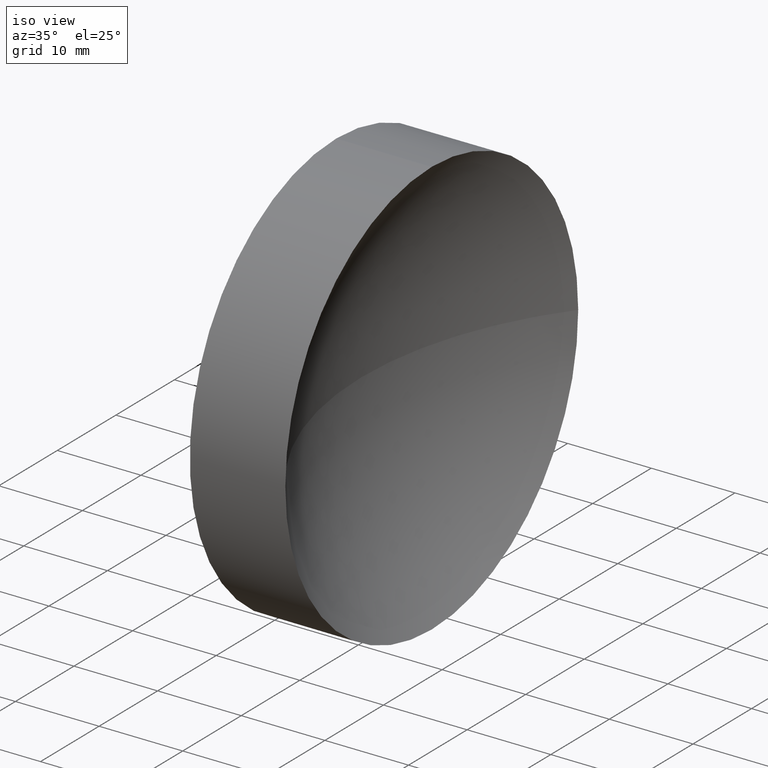
[diagram: clean part render]
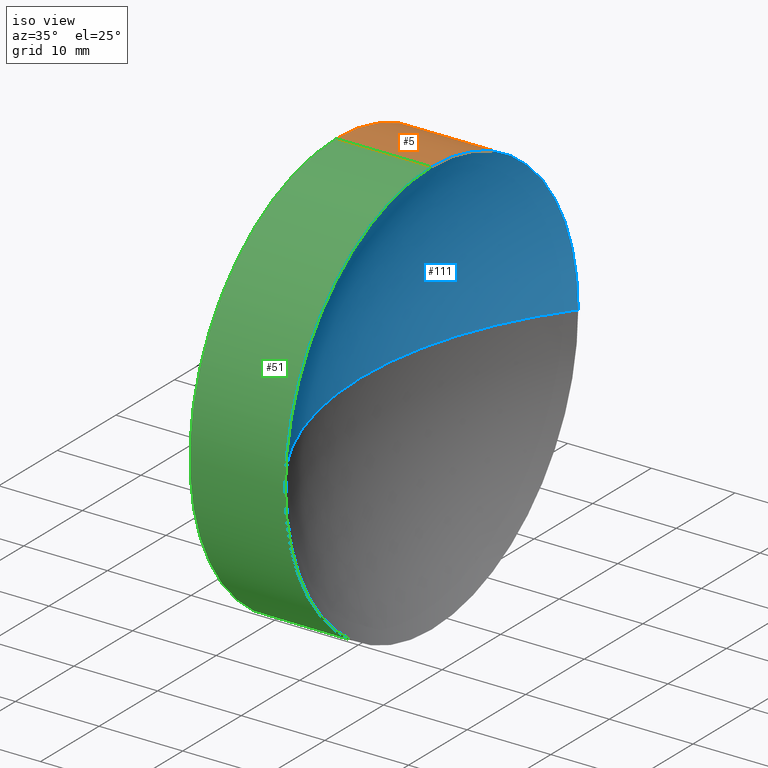
[diagram: same view with three faces highlighted in distinct colors, each labeled with its STEP entity id]
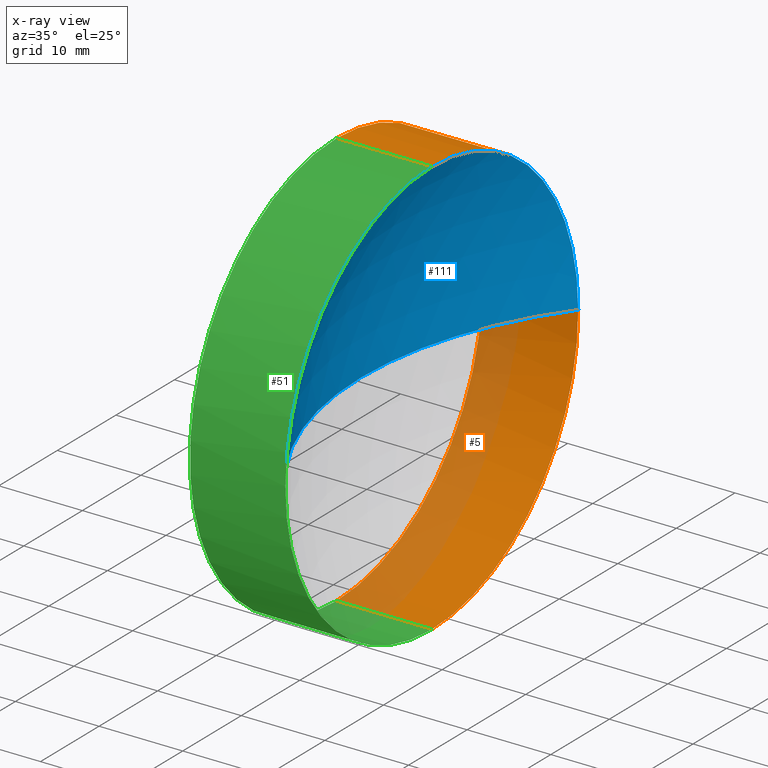
[diagram: x-ray of the same camera — body ghosted, the three highlighted faces saturated]
A machine part, iso view with three faces highlighted in distinct colors.
The next image is the same camera in x-ray (body ghosted, the three faces saturated) — at least one of them is partly hidden behind the body in this view.
Their STEP definitions:

[orange] entity #5 — the highlighted cylindrical surface (partial cylindrical patch) has radius 25 mm, axis along (-1, -0, -0).
#4 = ORIENTED_EDGE ( 'NONE', *, *, #60, .F. ) ;
#5 = ADVANCED_FACE ( 'NONE', ( #87 ), #7, .T. ) ;
#7 = CYLINDRICAL_SURFACE ( 'NONE', #61, 24.99999999999999300 ) ;
#8 = VERTEX_POINT ( 'NONE', #22 ) ;
#17 = EDGE_CURVE ( 'NONE', #164, #158, #43, .T. ) ;
#18 = ORIENTED_EDGE ( 'NONE', *, *, #52, .T. ) ;
#22 = CARTESIAN_POINT ( 'NONE',  ( 125.1655873448789900, 65.15563045701519200, 24.99999999999999300 ) ) ;
#25 = DIRECTION ( 'NONE',  ( -1.000000000000000000, -0.0000000000000000000, -0.0000000000000000000 ) ) ;
#34 = VECTOR ( 'NONE', #165, 1000.000000000000000 ) ;
#35 = CARTESIAN_POINT ( 'NONE',  ( 125.1655873448789900, 65.15563045701519200, 0.0000000000000000000 ) ) ;
#36 = DIRECTION ( 'NONE',  ( 0.0000000000000000000, 0.0000000000000000000, 1.000000000000000000 ) ) ;
#37 = VECTOR ( 'NONE', #151, 1000.000000000000000 ) ;
#43 = LINE ( 'NONE', #46, #37 ) ;
#46 = CARTESIAN_POINT ( 'NONE',  ( 105.6218371238301200, 65.15563045701519200, -24.99999999999999300 ) ) ;
#47 = CARTESIAN_POINT ( 'NONE',  ( 113.7394371346435000, 65.15563045701519200, 0.0000000000000000000 ) ) ;
#50 = CARTESIAN_POINT ( 'NONE',  ( 125.1655873448789900, 90.15563045701519200, 3.061616997868381500E-015 ) ) ;
#52 = EDGE_CURVE ( 'NONE', #126, #164, #59, .T. ) ;
#57 = EDGE_CURVE ( 'NONE', #92, #158, #67, .T. ) ;
#59 = CIRCLE ( 'NONE', #72, 24.99999999999999300 ) ;
#60 = EDGE_CURVE ( 'NONE', #8, #92, #83, .T. ) ;
#61 = AXIS2_PLACEMENT_3D ( 'NONE', #90, #173, #36 ) ;
#63 = DIRECTION ( 'NONE',  ( 0.0000000000000000000, 0.0000000000000000000, 1.000000000000000000 ) ) ;
#67 = CIRCLE ( 'NONE', #105, 24.99999999999999300 ) ;
#72 = AXIS2_PLACEMENT_3D ( 'NONE', #35, #75, #136 ) ;
#73 = EDGE_LOOP ( 'NONE', ( #18, #116, #149, #4, #161 ) ) ;
#75 = DIRECTION ( 'NONE',  ( -1.000000000000000000, -0.0000000000000000000, -0.0000000000000000000 ) ) ;
#83 = LINE ( 'NONE', #147, #34 ) ;
#87 = FACE_OUTER_BOUND ( 'NONE', #73, .T. ) ;
#88 = AXIS2_PLACEMENT_3D ( 'NONE', #102, #25, #115 ) ;
#90 = CARTESIAN_POINT ( 'NONE',  ( 105.6218371238301200, 65.15563045701519200, 0.0000000000000000000 ) ) ;
#92 = VERTEX_POINT ( 'NONE', #124 ) ;
#102 = CARTESIAN_POINT ( 'NONE',  ( 125.1655873448789900, 65.15563045701519200, 0.0000000000000000000 ) ) ;
#105 = AXIS2_PLACEMENT_3D ( 'NONE', #47, #148, #63 ) ;
#115 = DIRECTION ( 'NONE',  ( 0.0000000000000000000, 0.0000000000000000000, 1.000000000000000000 ) ) ;
#116 = ORIENTED_EDGE ( 'NONE', *, *, #17, .T. ) ;
#124 = CARTESIAN_POINT ( 'NONE',  ( 113.7394371346435000, 65.15563045701519200, 24.99999999999999300 ) ) ;
#126 = VERTEX_POINT ( 'NONE', #50 ) ;
#136 = DIRECTION ( 'NONE',  ( 0.0000000000000000000, 0.0000000000000000000, 1.000000000000000000 ) ) ;
#142 = CARTESIAN_POINT ( 'NONE',  ( 125.1655873448789900, 65.15563045701519200, -24.99999999999999300 ) ) ;
#145 = CIRCLE ( 'NONE', #88, 24.99999999999999300 ) ;
#147 = CARTESIAN_POINT ( 'NONE',  ( 105.6218371238301200, 65.15563045701519200, 24.99999999999999300 ) ) ;
#148 = DIRECTION ( 'NONE',  ( -1.000000000000000000, -0.0000000000000000000, -0.0000000000000000000 ) ) ;
#149 = ORIENTED_EDGE ( 'NONE', *, *, #57, .F. ) ;
#151 = DIRECTION ( 'NONE',  ( -1.000000000000000000, -0.0000000000000000000, -0.0000000000000000000 ) ) ;
#158 = VERTEX_POINT ( 'NONE', #182 ) ;
#160 = EDGE_CURVE ( 'NONE', #8, #126, #145, .T. ) ;
#161 = ORIENTED_EDGE ( 'NONE', *, *, #160, .T. ) ;
#164 = VERTEX_POINT ( 'NONE', #142 ) ;
#165 = DIRECTION ( 'NONE',  ( -1.000000000000000000, -0.0000000000000000000, -0.0000000000000000000 ) ) ;
#173 = DIRECTION ( 'NONE',  ( -1.000000000000000000, -0.0000000000000000000, -0.0000000000000000000 ) ) ;
#182 = CARTESIAN_POINT ( 'NONE',  ( 113.7394371346435000, 65.15563045701519200, -24.99999999999999300 ) ) ;

[blue] entity #111 — the highlighted spherical surface has radius 41.3 mm.
#1 = EDGE_CURVE ( 'NONE', #49, #8, #129, .T. ) ;
#2 = ORIENTED_EDGE ( 'NONE', *, *, #14, .T. ) ;
#3 = ORIENTED_EDGE ( 'NONE', *, *, #160, .F. ) ;
#6 = CARTESIAN_POINT ( 'NONE',  ( 116.7394371346435000, 65.15563045701520700, 0.0000000000000000000 ) ) ;
#8 = VERTEX_POINT ( 'NONE', #22 ) ;
#9 = DIRECTION ( 'NONE',  ( -1.000000000000000000, 0.0000000000000000000, 0.0000000000000000000 ) ) ;
#10 = DIRECTION ( 'NONE',  ( 0.0000000000000000000, 0.0000000000000000000, -1.000000000000000000 ) ) ;
#11 = CARTESIAN_POINT ( 'NONE',  ( 158.0394371346434900, 65.15563045701520700, 0.0000000000000000000 ) ) ;
#12 = DIRECTION ( 'NONE',  ( 0.0000000000000000000, -1.224646799147353200E-016, 1.000000000000000000 ) ) ;
#14 = EDGE_CURVE ( 'NONE', #49, #55, #74, .T. ) ;
#22 = CARTESIAN_POINT ( 'NONE',  ( 125.1655873448789900, 65.15563045701519200, 24.99999999999999300 ) ) ;
#25 = DIRECTION ( 'NONE',  ( -1.000000000000000000, -0.0000000000000000000, -0.0000000000000000000 ) ) ;
#33 = AXIS2_PLACEMENT_3D ( 'NONE', #95, #10, #9 ) ;
#38 = ORIENTED_EDGE ( 'NONE', *, *, #1, .F. ) ;
#45 = ORIENTED_EDGE ( 'NONE', *, *, #162, .F. ) ;
#49 = VERTEX_POINT ( 'NONE', #166 ) ;
#50 = CARTESIAN_POINT ( 'NONE',  ( 125.1655873448789900, 90.15563045701519200, 3.061616997868381500E-015 ) ) ;
#55 = VERTEX_POINT ( 'NONE', #6 ) ;
#64 = DIRECTION ( 'NONE',  ( 0.0000000000000000000, 0.0000000000000000000, 1.000000000000000000 ) ) ;
#71 = DIRECTION ( 'NONE',  ( 0.0000000000000000000, 0.0000000000000000000, 1.000000000000000000 ) ) ;
#74 = CIRCLE ( 'NONE', #33, 41.30000000000000400 ) ;
#88 = AXIS2_PLACEMENT_3D ( 'NONE', #102, #25, #115 ) ;
#93 = DIRECTION ( 'NONE',  ( -1.000000000000000000, -0.0000000000000000000, -0.0000000000000000000 ) ) ;
#95 = CARTESIAN_POINT ( 'NONE',  ( 158.0394371346434900, 65.15563045701520700, 0.0000000000000000000 ) ) ;
#99 = EDGE_LOOP ( 'NONE', ( #45, #3, #38, #2 ) ) ;
#101 = AXIS2_PLACEMENT_3D ( 'NONE', #123, #93, #64 ) ;
#102 = CARTESIAN_POINT ( 'NONE',  ( 125.1655873448789900, 65.15563045701519200, 0.0000000000000000000 ) ) ;
#104 = SPHERICAL_SURFACE ( 'NONE', #127, 41.30000000000000400 ) ;
#111 = ADVANCED_FACE ( 'NONE', ( #131 ), #104, .F. ) ;
#115 = DIRECTION ( 'NONE',  ( 0.0000000000000000000, 0.0000000000000000000, 1.000000000000000000 ) ) ;
#123 = CARTESIAN_POINT ( 'NONE',  ( 125.1655873448789900, 65.15563045701519200, 0.0000000000000000000 ) ) ;
#126 = VERTEX_POINT ( 'NONE', #50 ) ;
#127 = AXIS2_PLACEMENT_3D ( 'NONE', #11, #71, #178 ) ;
#129 = CIRCLE ( 'NONE', #101, 24.99999999999999300 ) ;
#131 = FACE_OUTER_BOUND ( 'NONE', #99, .T. ) ;
#144 = AXIS2_PLACEMENT_3D ( 'NONE', #154, #12, #167 ) ;
#145 = CIRCLE ( 'NONE', #88, 24.99999999999999300 ) ;
#154 = CARTESIAN_POINT ( 'NONE',  ( 158.0394371346434900, 65.15563045701520700, 0.0000000000000000000 ) ) ;
#160 = EDGE_CURVE ( 'NONE', #8, #126, #145, .T. ) ;
#162 = EDGE_CURVE ( 'NONE', #126, #55, #170, .T. ) ;
#166 = CARTESIAN_POINT ( 'NONE',  ( 125.1655873448789900, 40.15563045701520700, 0.0000000000000000000 ) ) ;
#167 = DIRECTION ( 'NONE',  ( 0.0000000000000000000, -1.000000000000000000, -1.224646799147353200E-016 ) ) ;
#170 = CIRCLE ( 'NONE', #144, 41.30000000000000400 ) ;
#178 = DIRECTION ( 'NONE',  ( 0.0000000000000000000, -1.000000000000000000, 0.0000000000000000000 ) ) ;

[green] entity #51 — the highlighted cylindrical surface (partial cylindrical patch) has radius 25 mm, axis along (-1, -0, -0).
#1 = EDGE_CURVE ( 'NONE', #49, #8, #129, .T. ) ;
#8 = VERTEX_POINT ( 'NONE', #22 ) ;
#17 = EDGE_CURVE ( 'NONE', #164, #158, #43, .T. ) ;
#19 = EDGE_CURVE ( 'NONE', #158, #92, #135, .T. ) ;
#20 = CIRCLE ( 'NONE', #21, 24.99999999999999300 ) ;
#21 = AXIS2_PLACEMENT_3D ( 'NONE', #41, #125, #180 ) ;
#22 = CARTESIAN_POINT ( 'NONE',  ( 125.1655873448789900, 65.15563045701519200, 24.99999999999999300 ) ) ;
#34 = VECTOR ( 'NONE', #165, 1000.000000000000000 ) ;
#37 = VECTOR ( 'NONE', #151, 1000.000000000000000 ) ;
#41 = CARTESIAN_POINT ( 'NONE',  ( 125.1655873448789900, 65.15563045701519200, 0.0000000000000000000 ) ) ;
#43 = LINE ( 'NONE', #46, #37 ) ;
#46 = CARTESIAN_POINT ( 'NONE',  ( 105.6218371238301200, 65.15563045701519200, -24.99999999999999300 ) ) ;
#48 = CYLINDRICAL_SURFACE ( 'NONE', #130, 24.99999999999999300 ) ;
#49 = VERTEX_POINT ( 'NONE', #166 ) ;
#51 = ADVANCED_FACE ( 'NONE', ( #183 ), #48, .T. ) ;
#60 = EDGE_CURVE ( 'NONE', #8, #92, #83, .T. ) ;
#64 = DIRECTION ( 'NONE',  ( 0.0000000000000000000, 0.0000000000000000000, 1.000000000000000000 ) ) ;
#77 = ORIENTED_EDGE ( 'NONE', *, *, #60, .T. ) ;
#78 = CARTESIAN_POINT ( 'NONE',  ( 105.6218371238301200, 65.15563045701519200, 0.0000000000000000000 ) ) ;
#80 = ORIENTED_EDGE ( 'NONE', *, *, #17, .F. ) ;
#83 = LINE ( 'NONE', #147, #34 ) ;
#84 = ORIENTED_EDGE ( 'NONE', *, *, #120, .T. ) ;
#92 = VERTEX_POINT ( 'NONE', #124 ) ;
#93 = DIRECTION ( 'NONE',  ( -1.000000000000000000, -0.0000000000000000000, -0.0000000000000000000 ) ) ;
#97 = DIRECTION ( 'NONE',  ( 0.0000000000000000000, 0.0000000000000000000, 1.000000000000000000 ) ) ;
#98 = AXIS2_PLACEMENT_3D ( 'NONE', #163, #138, #108 ) ;
#101 = AXIS2_PLACEMENT_3D ( 'NONE', #123, #93, #64 ) ;
#108 = DIRECTION ( 'NONE',  ( 0.0000000000000000000, 0.0000000000000000000, 1.000000000000000000 ) ) ;
#120 = EDGE_CURVE ( 'NONE', #164, #49, #20, .T. ) ;
#122 = ORIENTED_EDGE ( 'NONE', *, *, #19, .F. ) ;
#123 = CARTESIAN_POINT ( 'NONE',  ( 125.1655873448789900, 65.15563045701519200, 0.0000000000000000000 ) ) ;
#124 = CARTESIAN_POINT ( 'NONE',  ( 113.7394371346435000, 65.15563045701519200, 24.99999999999999300 ) ) ;
#125 = DIRECTION ( 'NONE',  ( -1.000000000000000000, -0.0000000000000000000, -0.0000000000000000000 ) ) ;
#129 = CIRCLE ( 'NONE', #101, 24.99999999999999300 ) ;
#130 = AXIS2_PLACEMENT_3D ( 'NONE', #78, #175, #97 ) ;
#135 = CIRCLE ( 'NONE', #98, 24.99999999999999300 ) ;
#138 = DIRECTION ( 'NONE',  ( -1.000000000000000000, -0.0000000000000000000, -0.0000000000000000000 ) ) ;
#142 = CARTESIAN_POINT ( 'NONE',  ( 125.1655873448789900, 65.15563045701519200, -24.99999999999999300 ) ) ;
#147 = CARTESIAN_POINT ( 'NONE',  ( 105.6218371238301200, 65.15563045701519200, 24.99999999999999300 ) ) ;
#151 = DIRECTION ( 'NONE',  ( -1.000000000000000000, -0.0000000000000000000, -0.0000000000000000000 ) ) ;
#153 = EDGE_LOOP ( 'NONE', ( #80, #84, #184, #77, #122 ) ) ;
#158 = VERTEX_POINT ( 'NONE', #182 ) ;
#163 = CARTESIAN_POINT ( 'NONE',  ( 113.7394371346435000, 65.15563045701519200, 0.0000000000000000000 ) ) ;
#164 = VERTEX_POINT ( 'NONE', #142 ) ;
#165 = DIRECTION ( 'NONE',  ( -1.000000000000000000, -0.0000000000000000000, -0.0000000000000000000 ) ) ;
#166 = CARTESIAN_POINT ( 'NONE',  ( 125.1655873448789900, 40.15563045701520700, 0.0000000000000000000 ) ) ;
#175 = DIRECTION ( 'NONE',  ( -1.000000000000000000, -0.0000000000000000000, -0.0000000000000000000 ) ) ;
#180 = DIRECTION ( 'NONE',  ( 0.0000000000000000000, 0.0000000000000000000, 1.000000000000000000 ) ) ;
#182 = CARTESIAN_POINT ( 'NONE',  ( 113.7394371346435000, 65.15563045701519200, -24.99999999999999300 ) ) ;
#183 = FACE_OUTER_BOUND ( 'NONE', #153, .T. ) ;
#184 = ORIENTED_EDGE ( 'NONE', *, *, #1, .T. ) ;